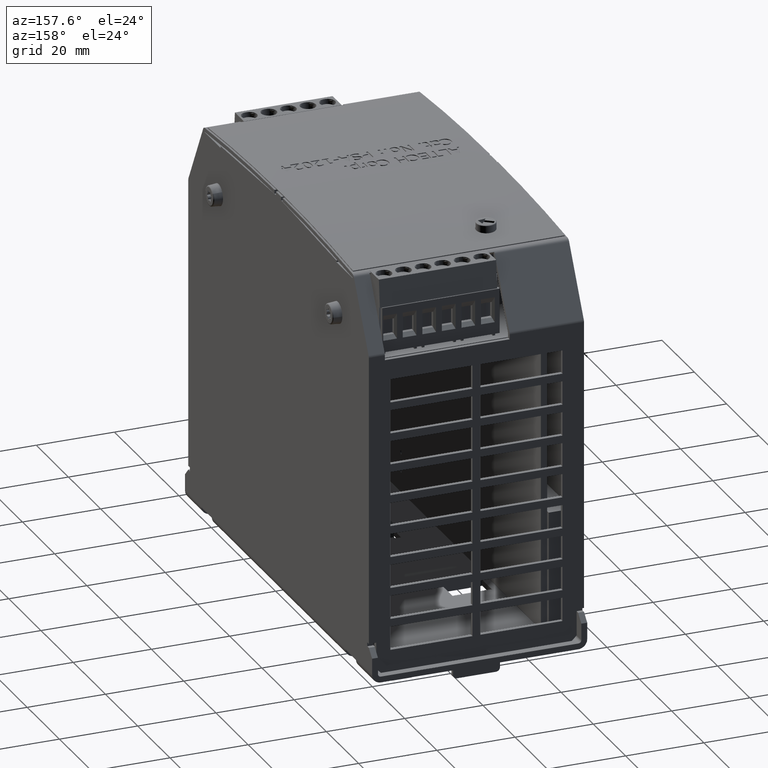
[diagram: clean part render]
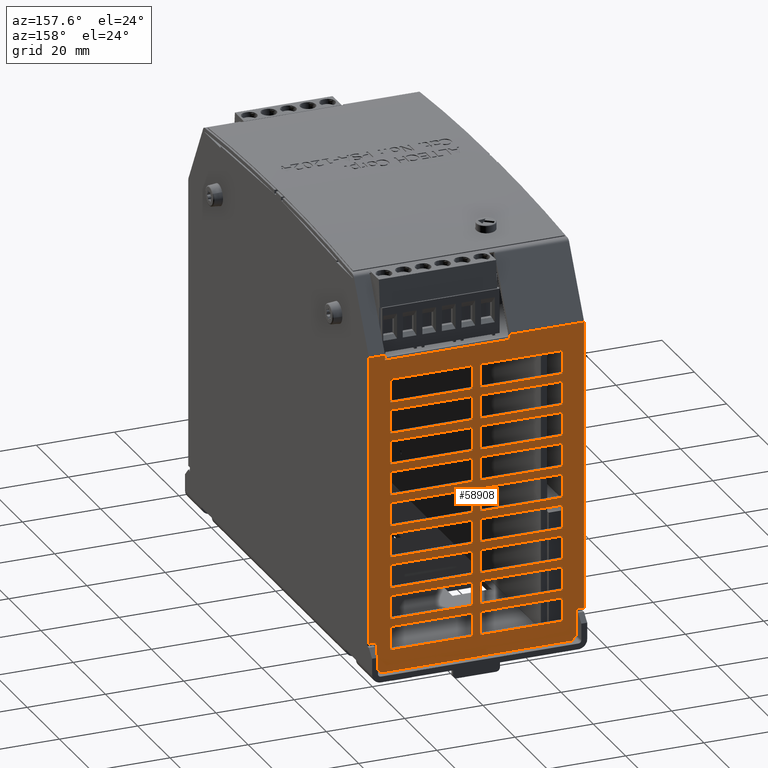
[diagram: same view with one face highlighted and labeled with its STEP entity id]
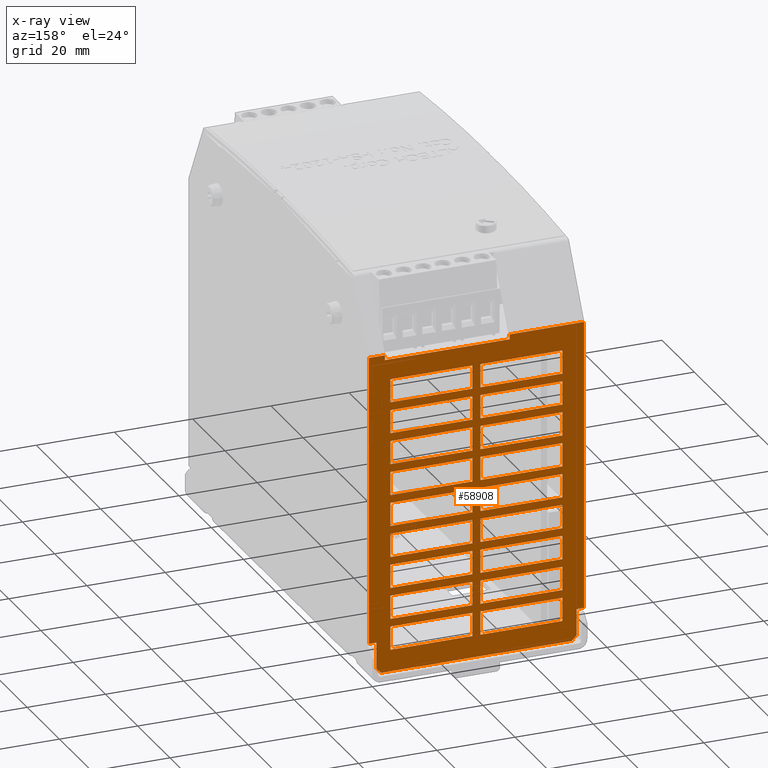
[diagram: x-ray of the same camera — body ghosted, the highlighted face saturated]
A machine part, auxiliary view. The second image highlights one B-rep face of the part: STEP entity #58908.
The next image is the same camera in x-ray: the body ghosted, the highlighted face saturated — about 0% of this face is hidden behind the body in this view.
In plain terms, the highlighted planar face has unit normal (-0, 1, 0).
Its self-contained STEP definition (entity closure, byte-faithful):
#25826=CARTESIAN_POINT('',(-0.960629921259928,2.204724409449696,0.059055118111682));
#25827=VERTEX_POINT('',#25826);
#25834=CARTESIAN_POINT('',(0.592519685039369,2.20472440944882,0.059055118110238));
#25835=VERTEX_POINT('',#25834);
#25836=CARTESIAN_POINT('',(-0.960629921259928,2.204724409449433,0.059055118110238));
#25837=DIRECTION('',(1.0,0.0,0.0));
#25838=VECTOR('',#25837,1.553149606299297);
#25839=LINE('',#25836,#25838);
#25840=EDGE_CURVE('',#25827,#25835,#25839,.T.);
#25842=CARTESIAN_POINT('',(0.649606299212459,2.204724409449692,0.059055118111674));
#25843=VERTEX_POINT('',#25842);
#25844=CARTESIAN_POINT('',(0.592519685039369,2.20472440944882,0.059055118110238));
#25845=DIRECTION('',(1.0,0.0,0.0));
#25846=VECTOR('',#25845,0.05708661417309);
#25847=LINE('',#25844,#25846);
#25848=EDGE_CURVE('',#25835,#25843,#25847,.T.);
#25850=CARTESIAN_POINT('',(0.846456692913246,2.204724409449692,0.059055118111672));
#25851=VERTEX_POINT('',#25850);
#25852=CARTESIAN_POINT('',(0.649606299212459,2.20472440944882,0.059055118110238));
#25853=DIRECTION('',(1.0,0.0,0.0));
#25854=VECTOR('',#25853,0.196850393700787);
#25855=LINE('',#25852,#25854);
#25856=EDGE_CURVE('',#25843,#25851,#25855,.T.);
#25858=CARTESIAN_POINT('',(0.848425196850392,2.20472440944882,0.059055118110238));
#25859=VERTEX_POINT('',#25858);
#25860=CARTESIAN_POINT('',(0.846456692913246,2.20472440944882,0.059055118110238));
#25861=DIRECTION('',(1.0,0.0,0.0));
#25862=VECTOR('',#25861,0.001968503937146);
#25863=LINE('',#25860,#25862);
#25864=EDGE_CURVE('',#25851,#25859,#25863,.T.);
#25866=CARTESIAN_POINT('',(0.96062992125996,2.204724409449692,0.059055118111674));
#25867=VERTEX_POINT('',#25866);
#25868=CARTESIAN_POINT('',(0.848425196850392,2.204724409449433,0.059055118110238));
#25869=DIRECTION('',(1.0,0.0,0.0));
#25870=VECTOR('',#25869,0.112204724409568);
#25871=LINE('',#25868,#25870);
#25872=EDGE_CURVE('',#25859,#25867,#25871,.T.);
#58182=CARTESIAN_POINT('',(1.082677165354314,2.204724409448474,8.436769444330336));
#58183=DIRECTION('',(-1.851262E-017,1.0,1.144779E-013));
#58184=DIRECTION('',(-1.0,0.0,0.0));
#58185=AXIS2_PLACEMENT_3D('',#58182,#58183,#58184);
#58186=PLANE('',#58185);
#58187=ORIENTED_EDGE('',*,*,#25856,.F.);
#58188=ORIENTED_EDGE('',*,*,#25848,.F.);
#58189=ORIENTED_EDGE('',*,*,#25840,.F.);
#58190=CARTESIAN_POINT('',(-1.007874015748192,2.204724409449687,0.106299212599925));
#58191=VERTEX_POINT('',#58190);
#58192=CARTESIAN_POINT('',(-0.960629921259928,2.204724409449696,0.059055118111682));
#58193=DIRECTION('',(-0.707106781186706,-1.262878E-013,0.707106781186389));
#58194=VECTOR('',#58193,0.066813239167324);
#58195=LINE('',#58192,#58194);
#58196=EDGE_CURVE('',#25827,#58191,#58195,.T.);
#58197=ORIENTED_EDGE('',*,*,#58196,.T.);
#58198=CARTESIAN_POINT('',(-1.00787401574818,2.204724409449633,0.374015748032771));
#58199=VERTEX_POINT('',#58198);
#58200=CARTESIAN_POINT('',(-1.007874015748192,2.204724409449687,0.106299212599925));
#58201=DIRECTION('',(4.478770E-014,-1.990565E-013,1.0));
#58202=VECTOR('',#58201,0.267716535432846);
#58203=LINE('',#58200,#58202);
#58204=EDGE_CURVE('',#58191,#58199,#58203,.T.);
#58205=ORIENTED_EDGE('',*,*,#58204,.T.);
#58206=CARTESIAN_POINT('',(-1.082677165354348,2.204724409449631,0.374015748032789));
#58207=VERTEX_POINT('',#58206);
#58208=CARTESIAN_POINT('',(-1.00787401574818,2.204724409449633,0.374015748032771));
#58209=DIRECTION('',(-1.0,-3.562063E-014,2.382130E-013));
#58210=VECTOR('',#58209,0.074803149606168);
#58211=LINE('',#58208,#58210);
#58212=EDGE_CURVE('',#58199,#58207,#58211,.T.);
#58213=ORIENTED_EDGE('',*,*,#58212,.T.);
#58214=CARTESIAN_POINT('',(-1.082677165354348,2.204724409449058,3.286387887926737));
#58215=VERTEX_POINT('',#58214);
#58216=CARTESIAN_POINT('',(-1.082677165354348,2.204724409449058,3.286387887926737));
#58217=DIRECTION('',(0.0,1.967039E-013,-1.0));
#58218=VECTOR('',#58217,2.912372139893948);
#58219=LINE('',#58216,#58218);
#58220=EDGE_CURVE('',#58215,#58207,#58219,.T.);
#58221=ORIENTED_EDGE('',*,*,#58220,.F.);
#58222=CARTESIAN_POINT('',(-0.33464566929135,2.204724409449064,3.286387887926737));
#58223=VERTEX_POINT('',#58222);
#58224=CARTESIAN_POINT('',(-1.082677165354348,2.204724409449058,3.286387887926737));
#58225=DIRECTION('',(1.0,0.0,0.0));
#58226=VECTOR('',#58225,0.748031496062998);
#58227=LINE('',#58224,#58226);
#58228=EDGE_CURVE('',#58215,#58223,#58227,.T.);
#58229=ORIENTED_EDGE('',*,*,#58228,.T.);
#58230=CARTESIAN_POINT('',(-0.33464566929135,2.204724409449069,3.237014947519874));
#58231=VERTEX_POINT('',#58230);
#58232=CARTESIAN_POINT('',(-0.33464566929135,2.204724409449064,3.286387887926737));
#58233=DIRECTION('',(0.0,1.079350E-013,-1.0));
#58234=VECTOR('',#58233,0.049372940406863);
#58235=LINE('',#58232,#58234);
#58236=EDGE_CURVE('',#58223,#58231,#58235,.T.);
#58237=ORIENTED_EDGE('',*,*,#58236,.T.);
#58238=CARTESIAN_POINT('',(0.921259842519674,2.204724409449069,3.237014947519874));
#58239=VERTEX_POINT('',#58238);
#58240=CARTESIAN_POINT('',(-0.33464566929135,2.204724409449069,3.237014947519874));
#58241=DIRECTION('',(1.0,0.0,0.0));
#58242=VECTOR('',#58241,1.255905511811024);
#58243=LINE('',#58240,#58242);
#58244=EDGE_CURVE('',#58231,#58239,#58243,.T.);
#58245=ORIENTED_EDGE('',*,*,#58244,.T.);
#58246=CARTESIAN_POINT('',(0.921259842519674,2.204724409449064,3.286387887926737));
#58247=VERTEX_POINT('',#58246);
#58248=CARTESIAN_POINT('',(0.921259842519674,2.204724409449069,3.237014947519874));
#58249=DIRECTION('',(0.0,-1.079350E-013,1.0));
#58250=VECTOR('',#58249,0.049372940406863);
#58251=LINE('',#58248,#58250);
#58252=EDGE_CURVE('',#58239,#58247,#58251,.T.);
#58253=ORIENTED_EDGE('',*,*,#58252,.T.);
#58254=CARTESIAN_POINT('',(1.082677165354314,2.204724409449062,3.286387887926742));
#58255=VERTEX_POINT('',#58254);
#58256=CARTESIAN_POINT('',(0.921259842519674,2.204724409449064,3.286387887926737));
#58257=DIRECTION('',(1.0,0.0,0.0));
#58258=VECTOR('',#58257,0.16141732283464);
#58259=LINE('',#58256,#58258);
#58260=EDGE_CURVE('',#58247,#58255,#58259,.T.);
#58261=ORIENTED_EDGE('',*,*,#58260,.T.);
#58262=CARTESIAN_POINT('',(1.082677165354315,2.204724409449633,0.374015748032657));
#58263=VERTEX_POINT('',#58262);
#58264=CARTESIAN_POINT('',(1.082677165354314,2.204724409449062,3.286387887926742));
#58265=DIRECTION('',(2.287255E-016,1.963990E-013,-1.0));
#58266=VECTOR('',#58265,2.912372139894085);
#58267=LINE('',#58264,#58266);
#58268=EDGE_CURVE('',#58255,#58263,#58267,.T.);
#58269=ORIENTED_EDGE('',*,*,#58268,.T.);
#58270=CARTESIAN_POINT('',(1.007874015747909,2.204724409449632,0.374015748032682));
#58271=VERTEX_POINT('',#58270);
#58272=CARTESIAN_POINT('',(1.082677165354315,2.204724409449633,0.374015748032657));
#58273=DIRECTION('',(-1.0,-1.187354E-014,3.272645E-013));
#58274=VECTOR('',#58273,0.074803149606406);
#58275=LINE('',#58272,#58274);
#58276=EDGE_CURVE('',#58263,#58271,#58275,.T.);
#58277=ORIENTED_EDGE('',*,*,#58276,.T.);
#58278=CARTESIAN_POINT('',(1.007874015747893,2.204724409449684,0.106299212599585));
#58279=VERTEX_POINT('',#58278);
#58280=CARTESIAN_POINT('',(1.007874015747909,2.204724409449632,0.374015748032682));
#58281=DIRECTION('',(-6.137574E-014,1.924212E-013,-1.0));
#58282=VECTOR('',#58281,0.267716535433097);
#58283=LINE('',#58280,#58282);
#58284=EDGE_CURVE('',#58271,#58279,#58283,.T.);
#58285=ORIENTED_EDGE('',*,*,#58284,.T.);
#58286=CARTESIAN_POINT('',(1.007874015747893,2.204724409449684,0.106299212599585));
#58287=DIRECTION('',(-0.707106781186714,1.262878E-013,-0.707106781186381));
#58288=VECTOR('',#58287,0.066813239166856);
#58289=LINE('',#58286,#58288);
#58290=EDGE_CURVE('',#58279,#25867,#58289,.T.);
#58291=ORIENTED_EDGE('',*,*,#58290,.T.);
#58292=ORIENTED_EDGE('',*,*,#25872,.F.);
#58293=ORIENTED_EDGE('',*,*,#25864,.F.);
#58294=EDGE_LOOP('',(#58187,#58188,#58189,#58197,#58205,#58213,#58221,#58229,#58237,#58245,#58253,#58261,#58269,#58277,#58285,#58291,#58292,#58293));
#58295=FACE_OUTER_BOUND('',#58294,.T.);
#58296=CARTESIAN_POINT('',(0.86614173228331,2.204724409449653,0.277559055119536));
#58297=VERTEX_POINT('',#58296);
#58298=CARTESIAN_POINT('',(0.86614173228331,2.204724409449603,0.513779527560483));
#58299=VERTEX_POINT('',#58298);
#58300=CARTESIAN_POINT('',(0.86614173228331,2.204724409449653,0.277559055119536));
#58301=DIRECTION('',(0.0,-2.086775E-013,1.0));
#58302=VECTOR('',#58301,0.236220472440948);
#58303=LINE('',#58300,#58302);
#58304=EDGE_CURVE('',#58297,#58299,#58303,.T.);
#58305=ORIENTED_EDGE('',*,*,#58304,.T.);
#58306=CARTESIAN_POINT('',(0.039370078740003,2.204724409449603,0.513779527560483));
#58307=VERTEX_POINT('',#58306);
#58308=CARTESIAN_POINT('',(0.86614173228331,2.204724409449603,0.513779527560483));
#58309=DIRECTION('',(-1.0,0.0,0.0));
#58310=VECTOR('',#58309,0.826771653543307);
#58311=LINE('',#58308,#58310);
#58312=EDGE_CURVE('',#58299,#58307,#58311,.T.);
#58313=ORIENTED_EDGE('',*,*,#58312,.T.);
#58314=CARTESIAN_POINT('',(0.039370078740003,2.204724409449653,0.277559055119536));
#58315=VERTEX_POINT('',#58314);
#58316=CARTESIAN_POINT('',(0.039370078740003,2.204724409449603,0.513779527560483));
#58317=DIRECTION('',(0.0,2.086775E-013,-1.0));
#58318=VECTOR('',#58317,0.236220472440948);
#58319=LINE('',#58316,#58318);
#58320=EDGE_CURVE('',#58307,#58315,#58319,.T.);
#58321=ORIENTED_EDGE('',*,*,#58320,.T.);
#58322=CARTESIAN_POINT('',(0.039370078740003,2.204724409449653,0.277559055119536));
#58323=DIRECTION('',(1.0,0.0,0.0));
#58324=VECTOR('',#58323,0.826771653543307);
#58325=LINE('',#58322,#58324);
#58326=EDGE_CURVE('',#58315,#58297,#58325,.T.);
#58327=ORIENTED_EDGE('',*,*,#58326,.T.);
#58328=EDGE_LOOP('',(#58305,#58313,#58321,#58327));
#58329=FACE_BOUND('',#58328,.T.);
#58330=CARTESIAN_POINT('',(0.86614173228331,2.204724409449588,0.592519685040797));
#58331=VERTEX_POINT('',#58330);
#58332=CARTESIAN_POINT('',(0.86614173228331,2.204724409449544,0.828740157481745));
#58333=VERTEX_POINT('',#58332);
#58334=CARTESIAN_POINT('',(0.86614173228331,2.204724409449588,0.592519685040797));
#58335=DIRECTION('',(0.0,-1.879978E-013,1.0));
#58336=VECTOR('',#58335,0.236220472440948);
#58337=LINE('',#58334,#58336);
#58338=EDGE_CURVE('',#58331,#58333,#58337,.T.);
#58339=ORIENTED_EDGE('',*,*,#58338,.T.);
#58340=CARTESIAN_POINT('',(0.039370078740003,2.204724409449544,0.828740157481745));
#58341=VERTEX_POINT('',#58340);
#58342=CARTESIAN_POINT('',(0.86614173228331,2.204724409449544,0.828740157481745));
#58343=DIRECTION('',(-1.0,0.0,0.0));
#58344=VECTOR('',#58343,0.826771653543307);
#58345=LINE('',#58342,#58344);
#58346=EDGE_CURVE('',#58333,#58341,#58345,.T.);
#58347=ORIENTED_EDGE('',*,*,#58346,.T.);
#58348=CARTESIAN_POINT('',(0.039370078740003,2.204724409449588,0.592519685040797));
#58349=VERTEX_POINT('',#58348);
#58350=CARTESIAN_POINT('',(0.039370078740003,2.204724409449544,0.828740157481745));
#58351=DIRECTION('',(0.0,1.898777E-013,-1.0));
#58352=VECTOR('',#58351,0.236220472440948);
#58353=LINE('',#58350,#58352);
#58354=EDGE_CURVE('',#58341,#58349,#58353,.T.);
#58355=ORIENTED_EDGE('',*,*,#58354,.T.);
#58356=CARTESIAN_POINT('',(0.039370078740003,2.204724409449588,0.592519685040797));
#58357=DIRECTION('',(1.0,0.0,0.0));
#58358=VECTOR('',#58357,0.826771653543307);
#58359=LINE('',#58356,#58358);
#58360=EDGE_CURVE('',#58349,#58331,#58359,.T.);
#58361=ORIENTED_EDGE('',*,*,#58360,.T.);
#58362=EDGE_LOOP('',(#58339,#58347,#58355,#58361));
#58363=FACE_BOUND('',#58362,.T.);
#58364=CARTESIAN_POINT('',(0.86614173228331,2.204724409449528,0.907480314962057));
#58365=VERTEX_POINT('',#58364);
#58366=CARTESIAN_POINT('',(0.86614173228331,2.20472440944948,1.143700787403004));
#58367=VERTEX_POINT('',#58366);
#58368=CARTESIAN_POINT('',(0.86614173228331,2.204724409449528,0.907480314962057));
#58369=DIRECTION('',(0.0,-1.992776E-013,1.0));
#58370=VECTOR('',#58369,0.236220472440947);
#58371=LINE('',#58368,#58370);
#58372=EDGE_CURVE('',#58365,#58367,#58371,.T.);
#58373=ORIENTED_EDGE('',*,*,#58372,.T.);
#58374=CARTESIAN_POINT('',(0.039370078740003,2.20472440944948,1.143700787403004));
#58375=VERTEX_POINT('',#58374);
#58376=CARTESIAN_POINT('',(0.86614173228331,2.20472440944948,1.143700787403004));
#58377=DIRECTION('',(-1.0,0.0,0.0));
#58378=VECTOR('',#58377,0.826771653543307);
#58379=LINE('',#58376,#58378);
#58380=EDGE_CURVE('',#58367,#58375,#58379,.T.);
#58381=ORIENTED_EDGE('',*,*,#58380,.T.);
#58382=CARTESIAN_POINT('',(0.039370078740003,2.204724409449528,0.907480314962057));
#58383=VERTEX_POINT('',#58382);
#58384=CARTESIAN_POINT('',(0.039370078740003,2.20472440944948,1.143700787403004));
#58385=DIRECTION('',(0.0,1.992776E-013,-1.0));
#58386=VECTOR('',#58385,0.236220472440947);
#58387=LINE('',#58384,#58386);
#58388=EDGE_CURVE('',#58375,#58383,#58387,.T.);
#58389=ORIENTED_EDGE('',*,*,#58388,.T.);
#58390=CARTESIAN_POINT('',(0.039370078740003,2.204724409449528,0.907480314962057));
#58391=DIRECTION('',(1.0,0.0,0.0));
#58392=VECTOR('',#58391,0.826771653543307);
#58393=LINE('',#58390,#58392);
#58394=EDGE_CURVE('',#58383,#58365,#58393,.T.);
#58395=ORIENTED_EDGE('',*,*,#58394,.T.);
#58396=EDGE_LOOP('',(#58373,#58381,#58389,#58395));
#58397=FACE_BOUND('',#58396,.T.);
#58398=CARTESIAN_POINT('',(0.86614173228331,2.204724409449466,1.222440944883317));
#58399=VERTEX_POINT('',#58398);
#58400=CARTESIAN_POINT('',(0.86614173228331,2.20472440944942,1.458661417324264));
#58401=VERTEX_POINT('',#58400);
#58402=CARTESIAN_POINT('',(0.86614173228331,2.204724409449466,1.222440944883317));
#58403=DIRECTION('',(0.0,-1.936377E-013,1.0));
#58404=VECTOR('',#58403,0.236220472440948);
#58405=LINE('',#58402,#58404);
#58406=EDGE_CURVE('',#58399,#58401,#58405,.T.);
#58407=ORIENTED_EDGE('',*,*,#58406,.T.);
#58408=CARTESIAN_POINT('',(0.039370078740003,2.20472440944942,1.458661417324264));
#58409=VERTEX_POINT('',#58408);
#58410=CARTESIAN_POINT('',(0.86614173228331,2.20472440944942,1.458661417324264));
#58411=DIRECTION('',(-1.0,0.0,0.0));
#58412=VECTOR('',#58411,0.826771653543307);
#58413=LINE('',#58410,#58412);
#58414=EDGE_CURVE('',#58401,#58409,#58413,.T.);
#58415=ORIENTED_EDGE('',*,*,#58414,.T.);
#58416=CARTESIAN_POINT('',(0.039370078740003,2.204724409449466,1.222440944883317));
#58417=VERTEX_POINT('',#58416);
#58418=CARTESIAN_POINT('',(0.039370078740003,2.20472440944942,1.458661417324264));
#58419=DIRECTION('',(0.0,1.955177E-013,-1.0));
#58420=VECTOR('',#58419,0.236220472440948);
#58421=LINE('',#58418,#58420);
#58422=EDGE_CURVE('',#58409,#58417,#58421,.T.);
#58423=ORIENTED_EDGE('',*,*,#58422,.T.);
#58424=CARTESIAN_POINT('',(0.039370078740003,2.204724409449466,1.222440944883317));
#58425=DIRECTION('',(1.0,0.0,0.0));
#58426=VECTOR('',#58425,0.826771653543307);
#58427=LINE('',#58424,#58426);
#58428=EDGE_CURVE('',#58417,#58399,#58427,.T.);
#58429=ORIENTED_EDGE('',*,*,#58428,.T.);
#58430=EDGE_LOOP('',(#58407,#58415,#58423,#58429));
#58431=FACE_BOUND('',#58430,.T.);
#58432=CARTESIAN_POINT('',(0.86614173228331,2.204724409449405,1.537401574804578));
#58433=VERTEX_POINT('',#58432);
#58434=CARTESIAN_POINT('',(0.86614173228331,2.204724409449359,1.773622047245524));
#58435=VERTEX_POINT('',#58434);
#58436=CARTESIAN_POINT('',(0.86614173228331,2.204724409449405,1.537401574804578));
#58437=DIRECTION('',(0.0,-1.917577E-013,1.0));
#58438=VECTOR('',#58437,0.236220472440947);
#58439=LINE('',#58436,#58438);
#58440=EDGE_CURVE('',#58433,#58435,#58439,.T.);
#58441=ORIENTED_EDGE('',*,*,#58440,.T.);
#58442=CARTESIAN_POINT('',(0.039370078740003,2.204724409449359,1.773622047245524));
#58443=VERTEX_POINT('',#58442);
#58444=CARTESIAN_POINT('',(0.86614173228331,2.204724409449359,1.773622047245524));
#58445=DIRECTION('',(-1.0,0.0,0.0));
#58446=VECTOR('',#58445,0.826771653543307);
#58447=LINE('',#58444,#58446);
#58448=EDGE_CURVE('',#58435,#58443,#58447,.T.);
#58449=ORIENTED_EDGE('',*,*,#58448,.T.);
#58450=CARTESIAN_POINT('',(0.039370078740003,2.204724409449405,1.537401574804578));
#58451=VERTEX_POINT('',#58450);
#58452=CARTESIAN_POINT('',(0.039370078740003,2.204724409449359,1.773622047245524));
#58453=DIRECTION('',(0.0,1.917577E-013,-1.0));
#58454=VECTOR('',#58453,0.236220472440947);
#58455=LINE('',#58452,#58454);
#58456=EDGE_CURVE('',#58443,#58451,#58455,.T.);
#58457=ORIENTED_EDGE('',*,*,#58456,.T.);
#58458=CARTESIAN_POINT('',(0.039370078740003,2.204724409449405,1.537401574804578));
#58459=DIRECTION('',(1.0,0.0,0.0));
#58460=VECTOR('',#58459,0.826771653543307);
#58461=LINE('',#58458,#58460);
#58462=EDGE_CURVE('',#58451,#58433,#58461,.T.);
#58463=ORIENTED_EDGE('',*,*,#58462,.T.);
#58464=EDGE_LOOP('',(#58441,#58449,#58457,#58463));
#58465=FACE_BOUND('',#58464,.T.);
#58466=CARTESIAN_POINT('',(0.86614173228331,2.204724409449343,1.852362204725837));
#58467=VERTEX_POINT('',#58466);
#58468=CARTESIAN_POINT('',(0.86614173228331,2.204724409449298,2.088582677166784));
#58469=VERTEX_POINT('',#58468);
#58470=CARTESIAN_POINT('',(0.86614173228331,2.204724409449343,1.852362204725837));
#58471=DIRECTION('',(0.0,-1.917577E-013,1.0));
#58472=VECTOR('',#58471,0.236220472440947);
#58473=LINE('',#58470,#58472);
#58474=EDGE_CURVE('',#58467,#58469,#58473,.T.);
#58475=ORIENTED_EDGE('',*,*,#58474,.T.);
#58476=CARTESIAN_POINT('',(0.039370078740003,2.204724409449298,2.088582677166784));
#58477=VERTEX_POINT('',#58476);
#58478=CARTESIAN_POINT('',(0.86614173228331,2.204724409449298,2.088582677166784));
#58479=DIRECTION('',(-1.0,0.0,0.0));
#58480=VECTOR('',#58479,0.826771653543307);
#58481=LINE('',#58478,#58480);
#58482=EDGE_CURVE('',#58469,#58477,#58481,.T.);
#58483=ORIENTED_EDGE('',*,*,#58482,.T.);
#58484=CARTESIAN_POINT('',(0.039370078740003,2.204724409449343,1.852362204725837));
#58485=VERTEX_POINT('',#58484);
#58486=CARTESIAN_POINT('',(0.039370078740003,2.204724409449298,2.088582677166784));
#58487=DIRECTION('',(0.0,1.917577E-013,-1.0));
#58488=VECTOR('',#58487,0.236220472440947);
#58489=LINE('',#58486,#58488);
#58490=EDGE_CURVE('',#58477,#58485,#58489,.T.);
#58491=ORIENTED_EDGE('',*,*,#58490,.T.);
#58492=CARTESIAN_POINT('',(0.039370078740003,2.204724409449343,1.852362204725837));
#58493=DIRECTION('',(1.0,0.0,0.0));
#58494=VECTOR('',#58493,0.826771653543307);
#58495=LINE('',#58492,#58494);
#58496=EDGE_CURVE('',#58485,#58467,#58495,.T.);
#58497=ORIENTED_EDGE('',*,*,#58496,.T.);
#58498=EDGE_LOOP('',(#58475,#58483,#58491,#58497));
#58499=FACE_BOUND('',#58498,.T.);
#58500=CARTESIAN_POINT('',(0.86614173228331,2.204724409449282,2.167322834647097));
#58501=VERTEX_POINT('',#58500);
#58502=CARTESIAN_POINT('',(0.86614173228331,2.204724409449236,2.403543307088043));
#58503=VERTEX_POINT('',#58502);
#58504=CARTESIAN_POINT('',(0.86614173228331,2.204724409449282,2.167322834647097));
#58505=DIRECTION('',(0.0,-1.917577E-013,1.0));
#58506=VECTOR('',#58505,0.236220472440945);
#58507=LINE('',#58504,#58506);
#58508=EDGE_CURVE('',#58501,#58503,#58507,.T.);
#58509=ORIENTED_EDGE('',*,*,#58508,.T.);
#58510=CARTESIAN_POINT('',(0.039370078740003,2.204724409449236,2.403543307088043));
#58511=VERTEX_POINT('',#58510);
#58512=CARTESIAN_POINT('',(0.86614173228331,2.204724409449236,2.403543307088043));
#58513=DIRECTION('',(-1.0,0.0,0.0));
#58514=VECTOR('',#58513,0.826771653543307);
#58515=LINE('',#58512,#58514);
#58516=EDGE_CURVE('',#58503,#58511,#58515,.T.);
#58517=ORIENTED_EDGE('',*,*,#58516,.T.);
#58518=CARTESIAN_POINT('',(0.039370078740003,2.204724409449282,2.167322834647097));
#58519=VERTEX_POINT('',#58518);
#58520=CARTESIAN_POINT('',(0.039370078740003,2.204724409449236,2.403543307088043));
#58521=DIRECTION('',(0.0,1.917577E-013,-1.0));
#58522=VECTOR('',#58521,0.236220472440945);
#58523=LINE('',#58520,#58522);
#58524=EDGE_CURVE('',#58511,#58519,#58523,.T.);
#58525=ORIENTED_EDGE('',*,*,#58524,.T.);
#58526=CARTESIAN_POINT('',(0.039370078740003,2.204724409449282,2.167322834647097));
#58527=DIRECTION('',(1.0,0.0,0.0));
#58528=VECTOR('',#58527,0.826771653543307);
#58529=LINE('',#58526,#58528);
#58530=EDGE_CURVE('',#58519,#58501,#58529,.T.);
#58531=ORIENTED_EDGE('',*,*,#58530,.T.);
#58532=EDGE_LOOP('',(#58509,#58517,#58525,#58531));
#58533=FACE_BOUND('',#58532,.T.);
#58534=CARTESIAN_POINT('',(0.86614173228331,2.204724409449221,2.482283464568357));
#58535=VERTEX_POINT('',#58534);
#58536=CARTESIAN_POINT('',(0.86614173228331,2.204724409449177,2.718503937009304));
#58537=VERTEX_POINT('',#58536);
#58538=CARTESIAN_POINT('',(0.86614173228331,2.204724409449221,2.482283464568357));
#58539=DIRECTION('',(0.0,-1.917577E-013,1.0));
#58540=VECTOR('',#58539,0.236220472440948);
#58541=LINE('',#58538,#58540);
#58542=EDGE_CURVE('',#58535,#58537,#58541,.T.);
#58543=ORIENTED_EDGE('',*,*,#58542,.T.);
#58544=CARTESIAN_POINT('',(0.039370078740003,2.204724409449177,2.718503937009304));
#58545=VERTEX_POINT('',#58544);
#58546=CARTESIAN_POINT('',(0.86614173228331,2.204724409449177,2.718503937009304));
#58547=DIRECTION('',(-1.0,0.0,0.0));
#58548=VECTOR('',#58547,0.826771653543307);
#58549=LINE('',#58546,#58548);
#58550=EDGE_CURVE('',#58537,#58545,#58549,.T.);
#58551=ORIENTED_EDGE('',*,*,#58550,.T.);
#58552=CARTESIAN_POINT('',(0.039370078740003,2.204724409449221,2.482283464568357));
#58553=VERTEX_POINT('',#58552);
#58554=CARTESIAN_POINT('',(0.039370078740003,2.204724409449177,2.718503937009304));
#58555=DIRECTION('',(0.0,1.917577E-013,-1.0));
#58556=VECTOR('',#58555,0.236220472440948);
#58557=LINE('',#58554,#58556);
#58558=EDGE_CURVE('',#58545,#58553,#58557,.T.);
#58559=ORIENTED_EDGE('',*,*,#58558,.T.);
#58560=CARTESIAN_POINT('',(0.039370078740003,2.204724409449221,2.482283464568357));
#58561=DIRECTION('',(1.0,0.0,0.0));
#58562=VECTOR('',#58561,0.826771653543307);
#58563=LINE('',#58560,#58562);
#58564=EDGE_CURVE('',#58553,#58535,#58563,.T.);
#58565=ORIENTED_EDGE('',*,*,#58564,.T.);
#58566=EDGE_LOOP('',(#58543,#58551,#58559,#58565));
#58567=FACE_BOUND('',#58566,.T.);
#58568=CARTESIAN_POINT('',(0.86614173228331,2.204724409449161,2.797244094489619));
#58569=VERTEX_POINT('',#58568);
#58570=CARTESIAN_POINT('',(0.86614173228331,2.204724409449116,3.033464566930563));
#58571=VERTEX_POINT('',#58570);
#58572=CARTESIAN_POINT('',(0.86614173228331,2.204724409449161,2.797244094489619));
#58573=DIRECTION('',(0.0,-1.936377E-013,1.0));
#58574=VECTOR('',#58573,0.236220472440945);
#58575=LINE('',#58572,#58574);
#58576=EDGE_CURVE('',#58569,#58571,#58575,.T.);
#58577=ORIENTED_EDGE('',*,*,#58576,.T.);
#58578=CARTESIAN_POINT('',(0.039370078740003,2.204724409449116,3.033464566930563));
#58579=VERTEX_POINT('',#58578);
#58580=CARTESIAN_POINT('',(0.86614173228331,2.204724409449116,3.033464566930563));
#58581=DIRECTION('',(-1.0,0.0,0.0));
#58582=VECTOR('',#58581,0.826771653543307);
#58583=LINE('',#58580,#58582);
#58584=EDGE_CURVE('',#58571,#58579,#58583,.T.);
#58585=ORIENTED_EDGE('',*,*,#58584,.T.);
#58586=CARTESIAN_POINT('',(0.039370078740003,2.204724409449161,2.797244094489619));
#58587=VERTEX_POINT('',#58586);
#58588=CARTESIAN_POINT('',(0.039370078740003,2.204724409449116,3.033464566930563));
#58589=DIRECTION('',(0.0,1.936377E-013,-1.0));
#58590=VECTOR('',#58589,0.236220472440945);
#58591=LINE('',#58588,#58590);
#58592=EDGE_CURVE('',#58579,#58587,#58591,.T.);
#58593=ORIENTED_EDGE('',*,*,#58592,.T.);
#58594=CARTESIAN_POINT('',(0.039370078740003,2.204724409449161,2.797244094489619));
#58595=DIRECTION('',(1.0,0.0,0.0));
#58596=VECTOR('',#58595,0.826771653543307);
#58597=LINE('',#58594,#58596);
#58598=EDGE_CURVE('',#58587,#58569,#58597,.T.);
#58599=ORIENTED_EDGE('',*,*,#58598,.T.);
#58600=EDGE_LOOP('',(#58577,#58585,#58593,#58599));
#58601=FACE_BOUND('',#58600,.T.);
#58602=CARTESIAN_POINT('',(-0.039370078740313,2.204724409449653,0.277559055119536));
#58603=VERTEX_POINT('',#58602);
#58604=CARTESIAN_POINT('',(-0.039370078740313,2.204724409449605,0.513779527560482));
#58605=VERTEX_POINT('',#58604);
#58606=CARTESIAN_POINT('',(-0.039370078740313,2.204724409449653,0.277559055119536));
#58607=DIRECTION('',(0.0,-2.049176E-013,1.0));
#58608=VECTOR('',#58607,0.236220472440946);
#58609=LINE('',#58606,#58608);
#58610=EDGE_CURVE('',#58603,#58605,#58609,.T.);
#58611=ORIENTED_EDGE('',*,*,#58610,.T.);
#58612=CARTESIAN_POINT('',(-0.86614173228362,2.204724409449605,0.513779527560482));
#58613=VERTEX_POINT('',#58612);
#58614=CARTESIAN_POINT('',(-0.039370078740313,2.204724409449605,0.513779527560482));
#58615=DIRECTION('',(-1.0,0.0,0.0));
#58616=VECTOR('',#58615,0.826771653543307);
#58617=LINE('',#58614,#58616);
#58618=EDGE_CURVE('',#58605,#58613,#58617,.T.);
#58619=ORIENTED_EDGE('',*,*,#58618,.T.);
#58620=CARTESIAN_POINT('',(-0.86614173228362,2.204724409449653,0.277559055119536));
#58621=VERTEX_POINT('',#58620);
#58622=CARTESIAN_POINT('',(-0.86614173228362,2.204724409449605,0.513779527560482));
#58623=DIRECTION('',(0.0,2.049176E-013,-1.0));
#58624=VECTOR('',#58623,0.236220472440945);
#58625=LINE('',#58622,#58624);
#58626=EDGE_CURVE('',#58613,#58621,#58625,.T.);
#58627=ORIENTED_EDGE('',*,*,#58626,.T.);
#58628=CARTESIAN_POINT('',(-0.86614173228362,2.204724409449653,0.277559055119536));
#58629=DIRECTION('',(1.0,0.0,0.0));
#58630=VECTOR('',#58629,0.826771653543307);
#58631=LINE('',#58628,#58630);
#58632=EDGE_CURVE('',#58621,#58603,#58631,.T.);
#58633=ORIENTED_EDGE('',*,*,#58632,.T.);
#58634=EDGE_LOOP('',(#58611,#58619,#58627,#58633));
#58635=FACE_BOUND('',#58634,.T.);
#58636=CARTESIAN_POINT('',(-0.039370078740313,2.204724409449588,0.592519685040797));
#58637=VERTEX_POINT('',#58636);
#58638=CARTESIAN_POINT('',(-0.039370078740313,2.204724409449544,0.828740157481745));
#58639=VERTEX_POINT('',#58638);
#58640=CARTESIAN_POINT('',(-0.039370078740313,2.204724409449588,0.592519685040797));
#58641=DIRECTION('',(0.0,-1.861178E-013,1.0));
#58642=VECTOR('',#58641,0.236220472440948);
#58643=LINE('',#58640,#58642);
#58644=EDGE_CURVE('',#58637,#58639,#58643,.T.);
#58645=ORIENTED_EDGE('',*,*,#58644,.T.);
#58646=CARTESIAN_POINT('',(-0.86614173228362,2.204724409449544,0.828740157481745));
#58647=VERTEX_POINT('',#58646);
#58648=CARTESIAN_POINT('',(-0.039370078740313,2.204724409449544,0.828740157481745));
#58649=DIRECTION('',(-1.0,0.0,0.0));
#58650=VECTOR('',#58649,0.826771653543307);
#58651=LINE('',#58648,#58650);
#58652=EDGE_CURVE('',#58639,#58647,#58651,.T.);
#58653=ORIENTED_EDGE('',*,*,#58652,.T.);
#58654=CARTESIAN_POINT('',(-0.86614173228362,2.204724409449588,0.592519685040797));
#58655=VERTEX_POINT('',#58654);
#58656=CARTESIAN_POINT('',(-0.86614173228362,2.204724409449544,0.828740157481745));
#58657=DIRECTION('',(0.0,1.879978E-013,-1.0));
#58658=VECTOR('',#58657,0.236220472440948);
#58659=LINE('',#58656,#58658);
#58660=EDGE_CURVE('',#58647,#58655,#58659,.T.);
#58661=ORIENTED_EDGE('',*,*,#58660,.T.);
#58662=CARTESIAN_POINT('',(-0.86614173228362,2.204724409449588,0.592519685040797));
#58663=DIRECTION('',(1.0,0.0,0.0));
#58664=VECTOR('',#58663,0.826771653543307);
#58665=LINE('',#58662,#58664);
#58666=EDGE_CURVE('',#58655,#58637,#58665,.T.);
#58667=ORIENTED_EDGE('',*,*,#58666,.T.);
#58668=EDGE_LOOP('',(#58645,#58653,#58661,#58667));
#58669=FACE_BOUND('',#58668,.T.);
#58670=CARTESIAN_POINT('',(-0.039370078740313,2.204724409449528,0.907480314962057));
#58671=VERTEX_POINT('',#58670);
#58672=CARTESIAN_POINT('',(-0.039370078740313,2.20472440944948,1.143700787403004));
#58673=VERTEX_POINT('',#58672);
#58674=CARTESIAN_POINT('',(-0.039370078740313,2.204724409449528,0.907480314962057));
#58675=DIRECTION('',(0.0,-2.030376E-013,1.0));
#58676=VECTOR('',#58675,0.236220472440947);
#58677=LINE('',#58674,#58676);
#58678=EDGE_CURVE('',#58671,#58673,#58677,.T.);
#58679=ORIENTED_EDGE('',*,*,#58678,.T.);
#58680=CARTESIAN_POINT('',(-0.86614173228362,2.20472440944948,1.143700787403004));
#58681=VERTEX_POINT('',#58680);
#58682=CARTESIAN_POINT('',(-0.039370078740313,2.20472440944948,1.143700787403004));
#58683=DIRECTION('',(-1.0,0.0,0.0));
#58684=VECTOR('',#58683,0.826771653543307);
#58685=LINE('',#58682,#58684);
#58686=EDGE_CURVE('',#58673,#58681,#58685,.T.);
#58687=ORIENTED_EDGE('',*,*,#58686,.T.);
#58688=CARTESIAN_POINT('',(-0.86614173228362,2.204724409449528,0.907480314962057));
#58689=VERTEX_POINT('',#58688);
#58690=CARTESIAN_POINT('',(-0.86614173228362,2.20472440944948,1.143700787403004));
#58691=DIRECTION('',(0.0,2.030376E-013,-1.0));
#58692=VECTOR('',#58691,0.236220472440947);
#58693=LINE('',#58690,#58692);
#58694=EDGE_CURVE('',#58681,#58689,#58693,.T.);
#58695=ORIENTED_EDGE('',*,*,#58694,.T.);
#58696=CARTESIAN_POINT('',(-0.86614173228362,2.204724409449528,0.907480314962057));
#58697=DIRECTION('',(1.0,0.0,0.0));
#58698=VECTOR('',#58697,0.826771653543307);
#58699=LINE('',#58696,#58698);
#58700=EDGE_CURVE('',#58689,#58671,#58699,.T.);
#58701=ORIENTED_EDGE('',*,*,#58700,.T.);
#58702=EDGE_LOOP('',(#58679,#58687,#58695,#58701));
#58703=FACE_BOUND('',#58702,.T.);
#58704=CARTESIAN_POINT('',(-0.039370078740313,2.204724409449467,1.222440944883317));
#58705=VERTEX_POINT('',#58704);
#58706=CARTESIAN_POINT('',(-0.039370078740313,2.20472440944942,1.458661417324264));
#58707=VERTEX_POINT('',#58706);
#58708=CARTESIAN_POINT('',(-0.039370078740313,2.204724409449467,1.222440944883317));
#58709=DIRECTION('',(0.0,-1.992776E-013,1.0));
#58710=VECTOR('',#58709,0.236220472440947);
#58711=LINE('',#58708,#58710);
#58712=EDGE_CURVE('',#58705,#58707,#58711,.T.);
#58713=ORIENTED_EDGE('',*,*,#58712,.T.);
#58714=CARTESIAN_POINT('',(-0.86614173228362,2.20472440944942,1.458661417324264));
#58715=VERTEX_POINT('',#58714);
#58716=CARTESIAN_POINT('',(-0.039370078740313,2.20472440944942,1.458661417324264));
#58717=DIRECTION('',(-1.0,0.0,0.0));
#58718=VECTOR('',#58717,0.826771653543307);
#58719=LINE('',#58716,#58718);
#58720=EDGE_CURVE('',#58707,#58715,#58719,.T.);
#58721=ORIENTED_EDGE('',*,*,#58720,.T.);
#58722=CARTESIAN_POINT('',(-0.86614173228362,2.204724409449467,1.222440944883317));
#58723=VERTEX_POINT('',#58722);
#58724=CARTESIAN_POINT('',(-0.86614173228362,2.20472440944942,1.458661417324264));
#58725=DIRECTION('',(0.0,1.992776E-013,-1.0));
#58726=VECTOR('',#58725,0.236220472440947);
#58727=LINE('',#58724,#58726);
#58728=EDGE_CURVE('',#58715,#58723,#58727,.T.);
#58729=ORIENTED_EDGE('',*,*,#58728,.T.);
#58730=CARTESIAN_POINT('',(-0.86614173228362,2.204724409449467,1.222440944883317));
#58731=DIRECTION('',(1.0,0.0,0.0));
#58732=VECTOR('',#58731,0.826771653543307);
#58733=LINE('',#58730,#58732);
#58734=EDGE_CURVE('',#58723,#58705,#58733,.T.);
#58735=ORIENTED_EDGE('',*,*,#58734,.T.);
#58736=EDGE_LOOP('',(#58713,#58721,#58729,#58735));
#58737=FACE_BOUND('',#58736,.T.);
#58738=CARTESIAN_POINT('',(-0.039370078740313,2.204724409449405,1.537401574804578));
#58739=VERTEX_POINT('',#58738);
#58740=CARTESIAN_POINT('',(-0.039370078740313,2.204724409449359,1.773622047245524));
#58741=VERTEX_POINT('',#58740);
#58742=CARTESIAN_POINT('',(-0.039370078740313,2.204724409449405,1.537401574804578));
#58743=DIRECTION('',(0.0,-1.917577E-013,1.0));
#58744=VECTOR('',#58743,0.236220472440947);
#58745=LINE('',#58742,#58744);
#58746=EDGE_CURVE('',#58739,#58741,#58745,.T.);
#58747=ORIENTED_EDGE('',*,*,#58746,.T.);
#58748=CARTESIAN_POINT('',(-0.86614173228362,2.204724409449359,1.773622047245524));
#58749=VERTEX_POINT('',#58748);
#58750=CARTESIAN_POINT('',(-0.039370078740313,2.204724409449359,1.773622047245524));
#58751=DIRECTION('',(-1.0,0.0,0.0));
#58752=VECTOR('',#58751,0.826771653543307);
#58753=LINE('',#58750,#58752);
#58754=EDGE_CURVE('',#58741,#58749,#58753,.T.);
#58755=ORIENTED_EDGE('',*,*,#58754,.T.);
#58756=CARTESIAN_POINT('',(-0.86614173228362,2.204724409449405,1.537401574804578));
#58757=VERTEX_POINT('',#58756);
#58758=CARTESIAN_POINT('',(-0.86614173228362,2.204724409449359,1.773622047245524));
#58759=DIRECTION('',(0.0,1.917577E-013,-1.0));
#58760=VECTOR('',#58759,0.236220472440947);
#58761=LINE('',#58758,#58760);
#58762=EDGE_CURVE('',#58749,#58757,#58761,.T.);
#58763=ORIENTED_EDGE('',*,*,#58762,.T.);
#58764=CARTESIAN_POINT('',(-0.86614173228362,2.204724409449405,1.537401574804578));
#58765=DIRECTION('',(1.0,0.0,0.0));
#58766=VECTOR('',#58765,0.826771653543307);
#58767=LINE('',#58764,#58766);
#58768=EDGE_CURVE('',#58757,#58739,#58767,.T.);
#58769=ORIENTED_EDGE('',*,*,#58768,.T.);
#58770=EDGE_LOOP('',(#58747,#58755,#58763,#58769));
#58771=FACE_BOUND('',#58770,.T.);
#58772=CARTESIAN_POINT('',(-0.039370078740313,2.204724409449343,1.852362204725837));
#58773=VERTEX_POINT('',#58772);
#58774=CARTESIAN_POINT('',(-0.039370078740311,2.204724409449298,2.088582677166786));
#58775=VERTEX_POINT('',#58774);
#58776=CARTESIAN_POINT('',(-0.039370078740313,2.204724409449343,1.852362204725837));
#58777=DIRECTION('',(8.871145E-015,-1.917577E-013,1.0));
#58778=VECTOR('',#58777,0.236220472440949);
#58779=LINE('',#58776,#58778);
#58780=EDGE_CURVE('',#58773,#58775,#58779,.T.);
#58781=ORIENTED_EDGE('',*,*,#58780,.T.);
#58782=CARTESIAN_POINT('',(-0.86614173228362,2.204724409449298,2.088582677166786));
#58783=VERTEX_POINT('',#58782);
#58784=CARTESIAN_POINT('',(-0.039370078740311,2.204724409449298,2.088582677166786));
#58785=DIRECTION('',(-1.0,0.0,0.0));
#58786=VECTOR('',#58785,0.826771653543309);
#58787=LINE('',#58784,#58786);
#58788=EDGE_CURVE('',#58775,#58783,#58787,.T.);
#58789=ORIENTED_EDGE('',*,*,#58788,.T.);
#58790=CARTESIAN_POINT('',(-0.86614173228362,2.204724409449343,1.852362204725837));
#58791=VERTEX_POINT('',#58790);
#58792=CARTESIAN_POINT('',(-0.86614173228362,2.204724409449298,2.088582677166786));
#58793=DIRECTION('',(0.0,1.917577E-013,-1.0));
#58794=VECTOR('',#58793,0.236220472440949);
#58795=LINE('',#58792,#58794);
#58796=EDGE_CURVE('',#58783,#58791,#58795,.T.);
#58797=ORIENTED_EDGE('',*,*,#58796,.T.);
#58798=CARTESIAN_POINT('',(-0.86614173228362,2.204724409449343,1.852362204725837));
#58799=DIRECTION('',(1.0,0.0,0.0));
#58800=VECTOR('',#58799,0.826771653543307);
#58801=LINE('',#58798,#58800);
#58802=EDGE_CURVE('',#58791,#58773,#58801,.T.);
#58803=ORIENTED_EDGE('',*,*,#58802,.T.);
#58804=EDGE_LOOP('',(#58781,#58789,#58797,#58803));
#58805=FACE_BOUND('',#58804,.T.);
#58806=CARTESIAN_POINT('',(-0.039370078740313,2.204724409449283,2.167322834647097));
#58807=VERTEX_POINT('',#58806);
#58808=CARTESIAN_POINT('',(-0.039370078740311,2.204724409449238,2.403543307088043));
#58809=VERTEX_POINT('',#58808);
#58810=CARTESIAN_POINT('',(-0.039370078740313,2.204724409449283,2.167322834647097));
#58811=DIRECTION('',(8.871145E-015,-1.898777E-013,1.0));
#58812=VECTOR('',#58811,0.236220472440946);
#58813=LINE('',#58810,#58812);
#58814=EDGE_CURVE('',#58807,#58809,#58813,.T.);
#58815=ORIENTED_EDGE('',*,*,#58814,.T.);
#58816=CARTESIAN_POINT('',(-0.866141732283619,2.204724409449238,2.403543307088043));
#58817=VERTEX_POINT('',#58816);
#58818=CARTESIAN_POINT('',(-0.039370078740311,2.204724409449238,2.403543307088043));
#58819=DIRECTION('',(-1.0,0.0,0.0));
#58820=VECTOR('',#58819,0.826771653543308);
#58821=LINE('',#58818,#58820);
#58822=EDGE_CURVE('',#58809,#58817,#58821,.T.);
#58823=ORIENTED_EDGE('',*,*,#58822,.T.);
#58824=CARTESIAN_POINT('',(-0.86614173228362,2.204724409449283,2.167322834647097));
#58825=VERTEX_POINT('',#58824);
#58826=CARTESIAN_POINT('',(-0.866141732283619,2.204724409449238,2.403543307088043));
#58827=DIRECTION('',(-3.289961E-015,1.879978E-013,-1.0));
#58828=VECTOR('',#58827,0.236220472440946);
#58829=LINE('',#58826,#58828);
#58830=EDGE_CURVE('',#58817,#58825,#58829,.T.);
#58831=ORIENTED_EDGE('',*,*,#58830,.T.);
#58832=CARTESIAN_POINT('',(-0.86614173228362,2.204724409449283,2.167322834647097));
#58833=DIRECTION('',(1.0,0.0,0.0));
#58834=VECTOR('',#58833,0.826771653543307);
#58835=LINE('',#58832,#58834);
#58836=EDGE_CURVE('',#58825,#58807,#58835,.T.);
#58837=ORIENTED_EDGE('',*,*,#58836,.T.);
#58838=EDGE_LOOP('',(#58815,#58823,#58831,#58837));
#58839=FACE_BOUND('',#58838,.T.);
#58840=CARTESIAN_POINT('',(-0.039370078740313,2.204724409449221,2.482283464568357));
#58841=VERTEX_POINT('',#58840);
#58842=CARTESIAN_POINT('',(-0.039370078740311,2.204724409449177,2.718503937009304));
#58843=VERTEX_POINT('',#58842);
#58844=CARTESIAN_POINT('',(-0.039370078740313,2.204724409449221,2.482283464568357));
#58845=DIRECTION('',(8.871145E-015,-1.917577E-013,1.0));
#58846=VECTOR('',#58845,0.236220472440948);
#58847=LINE('',#58844,#58846);
#58848=EDGE_CURVE('',#58841,#58843,#58847,.T.);
#58849=ORIENTED_EDGE('',*,*,#58848,.T.);
#58850=CARTESIAN_POINT('',(-0.866141732283619,2.204724409449177,2.718503937009304));
#58851=VERTEX_POINT('',#58850);
#58852=CARTESIAN_POINT('',(-0.039370078740311,2.204724409449177,2.718503937009304));
#58853=DIRECTION('',(-1.0,0.0,0.0));
#58854=VECTOR('',#58853,0.826771653543308);
#58855=LINE('',#58852,#58854);
#58856=EDGE_CURVE('',#58843,#58851,#58855,.T.);
#58857=ORIENTED_EDGE('',*,*,#58856,.T.);
#58858=CARTESIAN_POINT('',(-0.86614173228362,2.204724409449221,2.482283464568357));
#58859=VERTEX_POINT('',#58858);
#58860=CARTESIAN_POINT('',(-0.866141732283619,2.204724409449177,2.718503937009304));
#58861=DIRECTION('',(-3.289961E-015,1.917577E-013,-1.0));
#58862=VECTOR('',#58861,0.236220472440948);
#58863=LINE('',#58860,#58862);
#58864=EDGE_CURVE('',#58851,#58859,#58863,.T.);
#58865=ORIENTED_EDGE('',*,*,#58864,.T.);
#58866=CARTESIAN_POINT('',(-0.86614173228362,2.204724409449221,2.482283464568357));
#58867=DIRECTION('',(1.0,0.0,0.0));
#58868=VECTOR('',#58867,0.826771653543307);
#58869=LINE('',#58866,#58868);
#58870=EDGE_CURVE('',#58859,#58841,#58869,.T.);
#58871=ORIENTED_EDGE('',*,*,#58870,.T.);
#58872=EDGE_LOOP('',(#58849,#58857,#58865,#58871));
#58873=FACE_BOUND('',#58872,.T.);
#58874=CARTESIAN_POINT('',(-0.039370078740311,2.204724409449164,2.797244094489617));
#58875=VERTEX_POINT('',#58874);
#58876=CARTESIAN_POINT('',(-0.039370078740313,2.204724409449116,3.033464566930563));
#58877=VERTEX_POINT('',#58876);
#58878=CARTESIAN_POINT('',(-0.039370078740311,2.204724409449164,2.797244094489617));
#58879=DIRECTION('',(-8.871145E-015,-2.030376E-013,1.0));
#58880=VECTOR('',#58879,0.236220472440947);
#58881=LINE('',#58878,#58880);
#58882=EDGE_CURVE('',#58875,#58877,#58881,.T.);
#58883=ORIENTED_EDGE('',*,*,#58882,.T.);
#58884=CARTESIAN_POINT('',(-0.86614173228362,2.204724409449116,3.033464566930563));
#58885=VERTEX_POINT('',#58884);
#58886=CARTESIAN_POINT('',(-0.039370078740313,2.204724409449116,3.033464566930563));
#58887=DIRECTION('',(-1.0,0.0,0.0));
#58888=VECTOR('',#58887,0.826771653543307);
#58889=LINE('',#58886,#58888);
#58890=EDGE_CURVE('',#58877,#58885,#58889,.T.);
#58891=ORIENTED_EDGE('',*,*,#58890,.T.);
#58892=CARTESIAN_POINT('',(-0.866141732283619,2.204724409449164,2.797244094489617));
#58893=VERTEX_POINT('',#58892);
#58894=CARTESIAN_POINT('',(-0.86614173228362,2.204724409449116,3.033464566930563));
#58895=DIRECTION('',(3.289961E-015,2.049176E-013,-1.0));
#58896=VECTOR('',#58895,0.236220472440947);
#58897=LINE('',#58894,#58896);
#58898=EDGE_CURVE('',#58885,#58893,#58897,.T.);
#58899=ORIENTED_EDGE('',*,*,#58898,.T.);
#58900=CARTESIAN_POINT('',(-0.866141732283619,2.204724409449164,2.797244094489617));
#58901=DIRECTION('',(1.0,0.0,0.0));
#58902=VECTOR('',#58901,0.826771653543308);
#58903=LINE('',#58900,#58902);
#58904=EDGE_CURVE('',#58893,#58875,#58903,.T.);
#58905=ORIENTED_EDGE('',*,*,#58904,.T.);
#58906=EDGE_LOOP('',(#58883,#58891,#58899,#58905));
#58907=FACE_BOUND('',#58906,.T.);
#58908=ADVANCED_FACE('',(#58295,#58329,#58363,#58397,#58431,#58465,#58499,#58533,#58567,#58601,#58635,#58669,#58703,#58737,#58771,#58805,#58839,#58873,#58907),#58186,.T.);